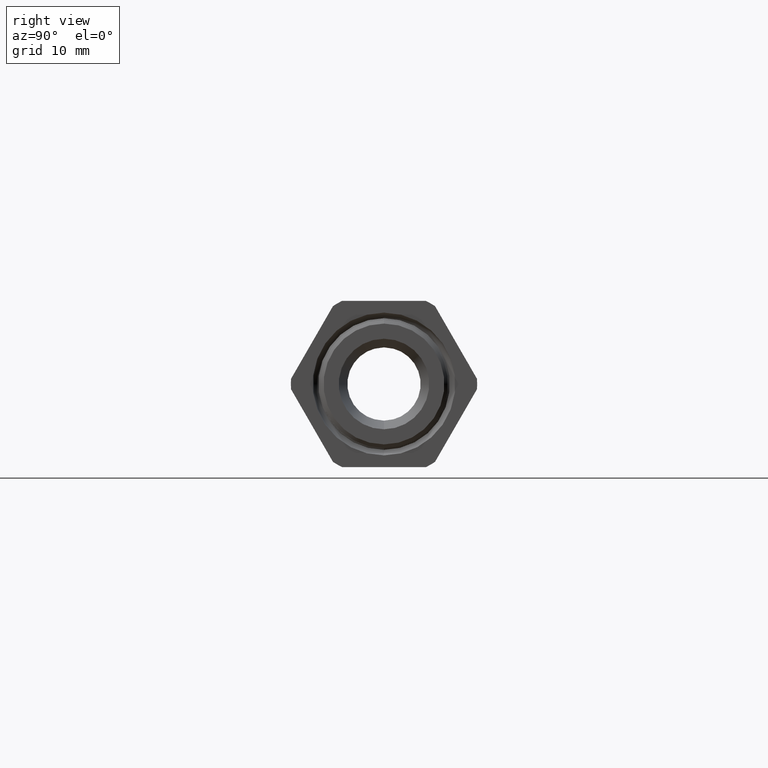
[diagram: clean part render]
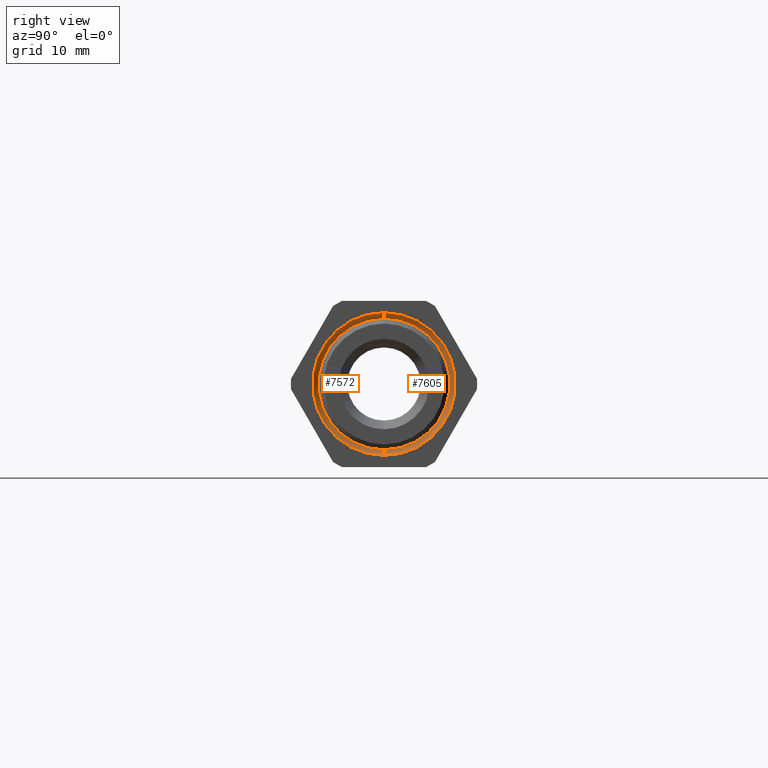
[diagram: same view with one multi-face feature highlighted, each face labeled with its STEP entity id]
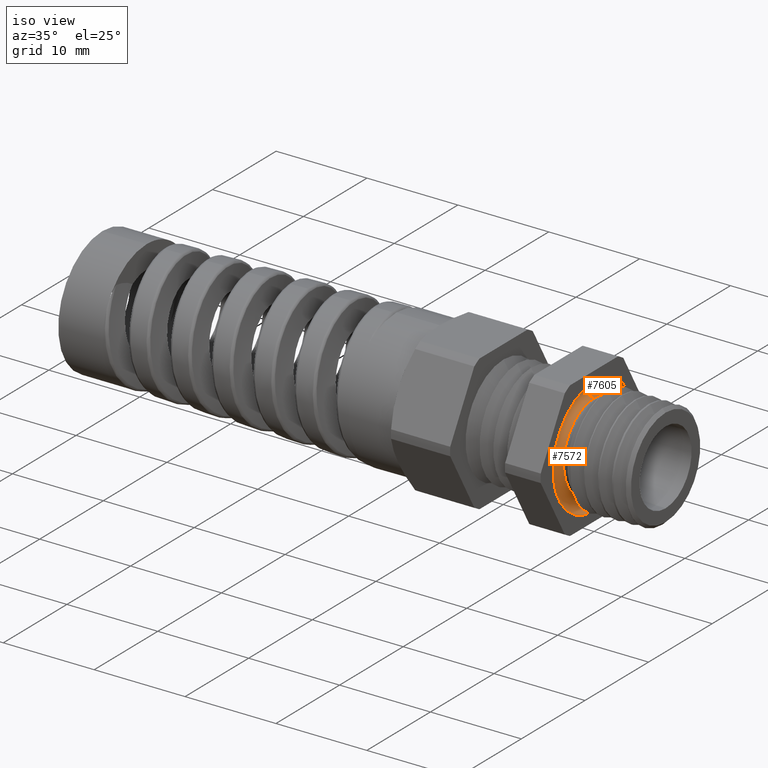
[diagram: same view with one multi-face feature highlighted, each face labeled with its STEP entity id]
A machine part, right view. The highlighted faces form ONE feature: a constant-radius fillet chain: 2 tangent blend faces with common blend radius 0.8255 mm. The faces share edges in the B-rep.
A second angle (iso view) of the same feature is appended — it is thin or edge-on in the first view.
Their STEP definitions:
[1] entity #7572 (Torus):
#1134 = DIRECTION ( 'NONE',  ( 0.0000000000000000000, 0.0000000000000000000, 1.000000000000000000 ) ) ;
#1135 = DIRECTION ( 'NONE',  ( -1.000000000000000000, 0.0000000000000000000, 0.0000000000000000000 ) ) ;
#1136 = AXIS2_PLACEMENT_3D ( 'NONE', #1138, #1135, #1134 ) ;
#1137 = TOROIDAL_SURFACE ( 'NONE', #1136, 0.2208542800000000100, 0.03249999999999997300 ) ;
#1138 = CARTESIAN_POINT ( 'NONE',  ( 0.0000000000000000000, 0.0000000000000000000, 0.0000000000000000000 ) ) ;
#1144 = FACE_OUTER_BOUND ( 'NONE', #7573, .T. ) ;
#1145 = CARTESIAN_POINT ( 'NONE',  ( 3.487598135429819200E-017, 3.102695080522822500E-017, -0.2533542799999999300 ) ) ;
#1146 = DIRECTION ( 'NONE',  ( 0.0000000000000000000, -1.224646799147353700E-016, 1.000000000000000000 ) ) ;
#1147 = DIRECTION ( 'NONE',  ( 0.0000000000000000000, 1.000000000000000000, 1.224646799147353200E-016 ) ) ;
#1148 = CARTESIAN_POINT ( 'NONE',  ( 0.0000000000000000000, 2.704684870799933300E-017, -0.2208542800000000100 ) ) ;
#1149 = AXIS2_PLACEMENT_3D ( 'NONE', #1148, #1147, #1146 ) ;
#1150 = CIRCLE ( 'NONE', #1149, 0.03249999999999995900 ) ;
#1194 = CARTESIAN_POINT ( 'NONE',  ( 3.487598135429819200E-017, 0.0000000000000000000, 0.2533542799999999300 ) ) ;
#1195 = DIRECTION ( 'NONE',  ( 0.0000000000000000000, 0.0000000000000000000, -1.000000000000000000 ) ) ;
#1196 = DIRECTION ( 'NONE',  ( 0.0000000000000000000, -1.000000000000000000, 0.0000000000000000000 ) ) ;
#1197 = CARTESIAN_POINT ( 'NONE',  ( 0.0000000000000000000, 0.0000000000000000000, 0.2208542800000000100 ) ) ;
#1198 = AXIS2_PLACEMENT_3D ( 'NONE', #1197, #1196, #1195 ) ;
#1199 = CIRCLE ( 'NONE', #1198, 0.03249999999999995900 ) ;
#1297 = CARTESIAN_POINT ( 'NONE',  ( 3.980102097228896800E-018, 0.0000000000000000000, 0.1883542800000000700 ) ) ;
#1451 = DIRECTION ( 'NONE',  ( 0.0000000000000000000, 0.0000000000000000000, 1.000000000000000000 ) ) ;
#1452 = DIRECTION ( 'NONE',  ( -1.000000000000000000, 0.0000000000000000000, 0.0000000000000000000 ) ) ;
#1453 = CARTESIAN_POINT ( 'NONE',  ( 3.980102097228894500E-018, 0.0000000000000000000, 0.0000000000000000000 ) ) ;
#1454 = AXIS2_PLACEMENT_3D ( 'NONE', #1453, #1452, #1451 ) ;
#1455 = CIRCLE ( 'NONE', #1454, 0.1883542800000000700 ) ;
#1456 = CARTESIAN_POINT ( 'NONE',  ( 3.980102097228896800E-018, 2.306674661077043400E-017, -0.1883542800000000700 ) ) ;
#1621 = DIRECTION ( 'NONE',  ( 0.0000000000000000000, 0.0000000000000000000, 1.000000000000000000 ) ) ;
#1622 = DIRECTION ( 'NONE',  ( -1.000000000000000000, 0.0000000000000000000, 0.0000000000000000000 ) ) ;
#1623 = AXIS2_PLACEMENT_3D ( 'NONE', #1630, #1622, #1621 ) ;
#1624 = CIRCLE ( 'NONE', #1623, 0.2533542799999999900 ) ;
#1630 = CARTESIAN_POINT ( 'NONE',  ( 3.487598135429819200E-017, 0.0000000000000000000, 0.0000000000000000000 ) ) ;
#7568 = EDGE_CURVE ( 'NONE', #7569, #7629, #1150, .T. ) ;
#7569 = VERTEX_POINT ( 'NONE', #1145 ) ;
#7572 = ADVANCED_FACE ( 'NONE', ( #1144 ), #1137, .F. ) ;
#7573 = EDGE_LOOP ( 'NONE', ( #7574, #7575, #7631, #7667 ) ) ;
#7574 = ORIENTED_EDGE ( 'NONE', *, *, #7568, .T. ) ;
#7575 = ORIENTED_EDGE ( 'NONE', *, *, #7630, .T. ) ;
#7577 = EDGE_CURVE ( 'NONE', #7578, #7606, #1199, .T. ) ;
#7578 = VERTEX_POINT ( 'NONE', #1194 ) ;
#7606 = VERTEX_POINT ( 'NONE', #1297 ) ;
#7629 = VERTEX_POINT ( 'NONE', #1456 ) ;
#7630 = EDGE_CURVE ( 'NONE', #7629, #7606, #1455, .T. ) ;
#7631 = ORIENTED_EDGE ( 'NONE', *, *, #7577, .F. ) ;
#7667 = ORIENTED_EDGE ( 'NONE', *, *, #7668, .F. ) ;
#7668 = EDGE_CURVE ( 'NONE', #7569, #7578, #1624, .T. ) ;
[2] entity #7605 (Torus):
#1139 = DIRECTION ( 'NONE',  ( 0.0000000000000000000, 0.0000000000000000000, 1.000000000000000000 ) ) ;
#1140 = DIRECTION ( 'NONE',  ( -1.000000000000000000, 0.0000000000000000000, 0.0000000000000000000 ) ) ;
#1141 = CARTESIAN_POINT ( 'NONE',  ( 3.487598135429819200E-017, 0.0000000000000000000, 0.0000000000000000000 ) ) ;
#1142 = AXIS2_PLACEMENT_3D ( 'NONE', #1141, #1140, #1139 ) ;
#1143 = CIRCLE ( 'NONE', #1142, 0.2533542799999999900 ) ;
#1145 = CARTESIAN_POINT ( 'NONE',  ( 3.487598135429819200E-017, 3.102695080522822500E-017, -0.2533542799999999300 ) ) ;
#1146 = DIRECTION ( 'NONE',  ( 0.0000000000000000000, -1.224646799147353700E-016, 1.000000000000000000 ) ) ;
#1147 = DIRECTION ( 'NONE',  ( 0.0000000000000000000, 1.000000000000000000, 1.224646799147353200E-016 ) ) ;
#1148 = CARTESIAN_POINT ( 'NONE',  ( 0.0000000000000000000, 2.704684870799933300E-017, -0.2208542800000000100 ) ) ;
#1149 = AXIS2_PLACEMENT_3D ( 'NONE', #1148, #1147, #1146 ) ;
#1150 = CIRCLE ( 'NONE', #1149, 0.03249999999999995900 ) ;
#1194 = CARTESIAN_POINT ( 'NONE',  ( 3.487598135429819200E-017, 0.0000000000000000000, 0.2533542799999999300 ) ) ;
#1195 = DIRECTION ( 'NONE',  ( 0.0000000000000000000, 0.0000000000000000000, -1.000000000000000000 ) ) ;
#1196 = DIRECTION ( 'NONE',  ( 0.0000000000000000000, -1.000000000000000000, 0.0000000000000000000 ) ) ;
#1197 = CARTESIAN_POINT ( 'NONE',  ( 0.0000000000000000000, 0.0000000000000000000, 0.2208542800000000100 ) ) ;
#1198 = AXIS2_PLACEMENT_3D ( 'NONE', #1197, #1196, #1195 ) ;
#1199 = CIRCLE ( 'NONE', #1198, 0.03249999999999995900 ) ;
#1293 = DIRECTION ( 'NONE',  ( 0.0000000000000000000, 0.0000000000000000000, 1.000000000000000000 ) ) ;
#1294 = DIRECTION ( 'NONE',  ( -1.000000000000000000, 0.0000000000000000000, 0.0000000000000000000 ) ) ;
#1295 = AXIS2_PLACEMENT_3D ( 'NONE', #1298, #1294, #1293 ) ;
#1296 = TOROIDAL_SURFACE ( 'NONE', #1295, 0.2208542800000000100, 0.03249999999999997300 ) ;
#1297 = CARTESIAN_POINT ( 'NONE',  ( 3.980102097228896800E-018, 0.0000000000000000000, 0.1883542800000000700 ) ) ;
#1298 = CARTESIAN_POINT ( 'NONE',  ( 0.0000000000000000000, 0.0000000000000000000, 0.0000000000000000000 ) ) ;
#1299 = FACE_OUTER_BOUND ( 'NONE', #7613, .T. ) ;
#1456 = CARTESIAN_POINT ( 'NONE',  ( 3.980102097228896800E-018, 2.306674661077043400E-017, -0.1883542800000000700 ) ) ;
#1457 = DIRECTION ( 'NONE',  ( 0.0000000000000000000, 0.0000000000000000000, 1.000000000000000000 ) ) ;
#1458 = DIRECTION ( 'NONE',  ( -1.000000000000000000, 0.0000000000000000000, 0.0000000000000000000 ) ) ;
#1459 = CARTESIAN_POINT ( 'NONE',  ( 3.980102097228894500E-018, 0.0000000000000000000, 0.0000000000000000000 ) ) ;
#1460 = AXIS2_PLACEMENT_3D ( 'NONE', #1459, #1458, #1457 ) ;
#1461 = CIRCLE ( 'NONE', #1460, 0.1883542800000000700 ) ;
#7567 = ORIENTED_EDGE ( 'NONE', *, *, #7568, .F. ) ;
#7568 = EDGE_CURVE ( 'NONE', #7569, #7629, #1150, .T. ) ;
#7569 = VERTEX_POINT ( 'NONE', #1145 ) ;
#7570 = ORIENTED_EDGE ( 'NONE', *, *, #7571, .F. ) ;
#7571 = EDGE_CURVE ( 'NONE', #7578, #7569, #1143, .T. ) ;
#7576 = ORIENTED_EDGE ( 'NONE', *, *, #7577, .T. ) ;
#7577 = EDGE_CURVE ( 'NONE', #7578, #7606, #1199, .T. ) ;
#7578 = VERTEX_POINT ( 'NONE', #1194 ) ;
#7605 = ADVANCED_FACE ( 'NONE', ( #1299 ), #1296, .F. ) ;
#7606 = VERTEX_POINT ( 'NONE', #1297 ) ;
#7613 = EDGE_LOOP ( 'NONE', ( #7576, #7627, #7567, #7570 ) ) ;
#7627 = ORIENTED_EDGE ( 'NONE', *, *, #7628, .T. ) ;
#7628 = EDGE_CURVE ( 'NONE', #7606, #7629, #1461, .T. ) ;
#7629 = VERTEX_POINT ( 'NONE', #1456 ) ;